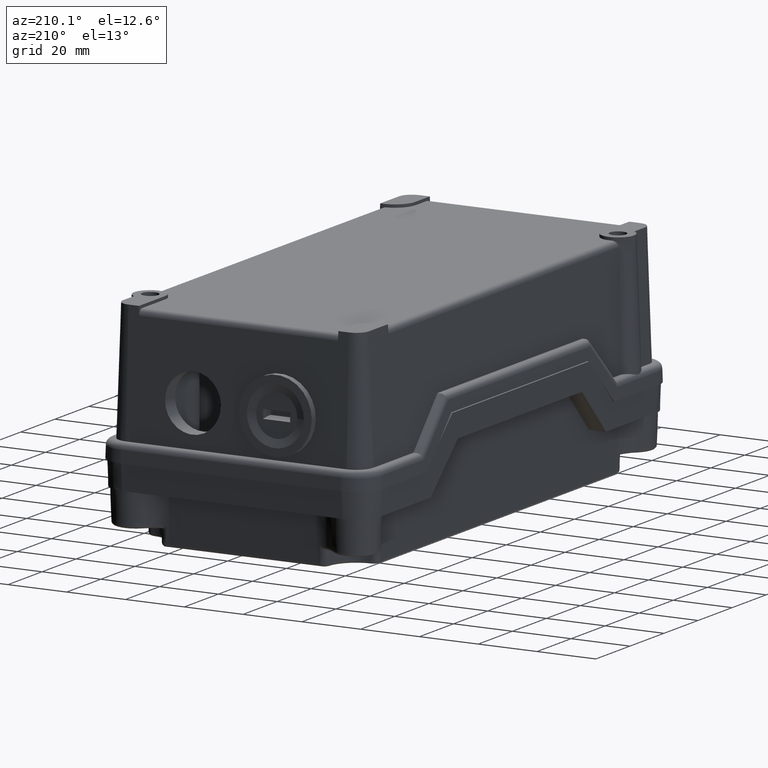
[diagram: clean part render]
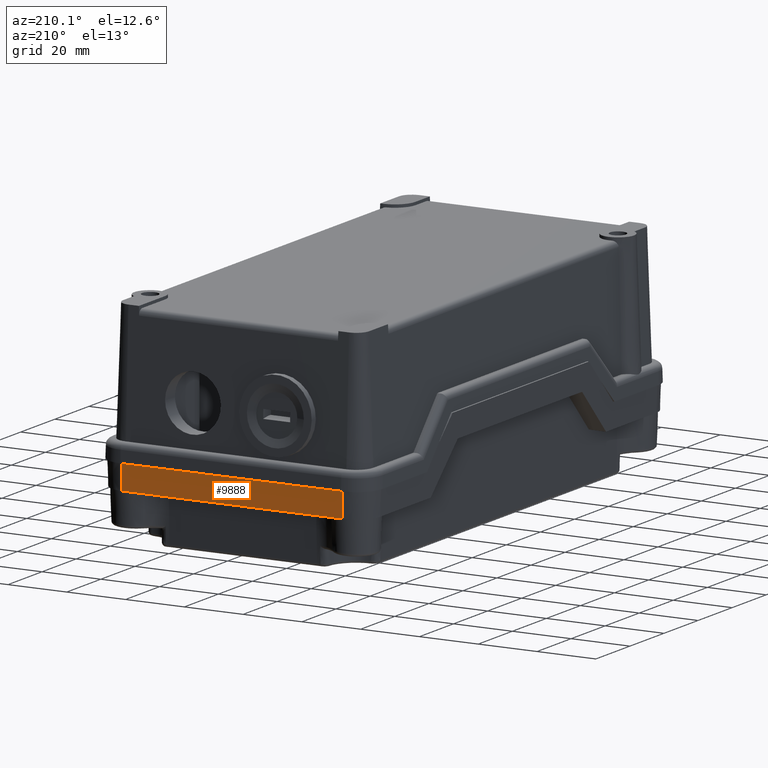
[diagram: same view with one face highlighted and labeled with its STEP entity id]
A machine part, auxiliary view. The second image highlights one B-rep face of the part: STEP entity #9888.
In plain terms, the highlighted planar face has unit normal (0, 0.9994, -0.0349).
Its self-contained STEP definition (entity closure, byte-faithful):
#8995=CARTESIAN_POINT('',(75.283278526198771,102.881467036110820,23.499999999999979));
#8996=VERTEX_POINT('',#8995);
#9004=CARTESIAN_POINT('',(0.283278526198742,102.881467036110830,23.499999999999979));
#9005=VERTEX_POINT('',#9004);
#9006=CARTESIAN_POINT('',(0.283278526198742,102.881467036110830,23.499999999999979));
#9007=DIRECTION('',(1.0,0.0,0.0));
#9008=VECTOR('',#9007,75.000000000000028);
#9009=LINE('',#9006,#9008);
#9010=EDGE_CURVE('',#9005,#8996,#9009,.T.);
#9324=CARTESIAN_POINT('',(0.283278526198741,103.178293576790680,15.000000000000009));
#9325=VERTEX_POINT('',#9324);
#9333=CARTESIAN_POINT('',(75.283278526198771,103.178293576790680,15.000000000000009));
#9334=VERTEX_POINT('',#9333);
#9335=CARTESIAN_POINT('',(75.283278526198771,103.178293576790680,15.000000000000009));
#9336=DIRECTION('',(-1.0,0.0,0.0));
#9337=VECTOR('',#9336,75.000000000000028);
#9338=LINE('',#9335,#9337);
#9339=EDGE_CURVE('',#9334,#9325,#9338,.T.);
#9717=CARTESIAN_POINT('',(0.283278526198741,103.178293576790680,15.000000000000009));
#9718=DIRECTION('',(5.874071E-017,-0.034899496702500,0.999390827019096));
#9719=VECTOR('',#9718,8.505181126539954);
#9720=LINE('',#9717,#9719);
#9721=EDGE_CURVE('',#9325,#9005,#9720,.T.);
#9872=CARTESIAN_POINT('',(0.283278526198740,103.702105119166900,0.0));
#9873=DIRECTION('',(2.367033E-016,0.999390827019096,0.034899496702501));
#9874=DIRECTION('',(-1.0,0.0,0.0));
#9875=AXIS2_PLACEMENT_3D('',#9872,#9873,#9874);
#9876=PLANE('',#9875);
#9877=ORIENTED_EDGE('',*,*,#9339,.T.);
#9878=ORIENTED_EDGE('',*,*,#9721,.T.);
#9879=ORIENTED_EDGE('',*,*,#9010,.T.);
#9880=CARTESIAN_POINT('',(75.283278526198771,103.178293576790680,15.000000000000009));
#9881=DIRECTION('',(0.0,-0.034899496702502,0.999390827019096));
#9882=VECTOR('',#9881,8.505181126539956);
#9883=LINE('',#9880,#9882);
#9884=EDGE_CURVE('',#9334,#8996,#9883,.T.);
#9885=ORIENTED_EDGE('',*,*,#9884,.F.);
#9886=EDGE_LOOP('',(#9877,#9878,#9879,#9885));
#9887=FACE_OUTER_BOUND('',#9886,.T.);
#9888=ADVANCED_FACE('',(#9887),#9876,.T.);